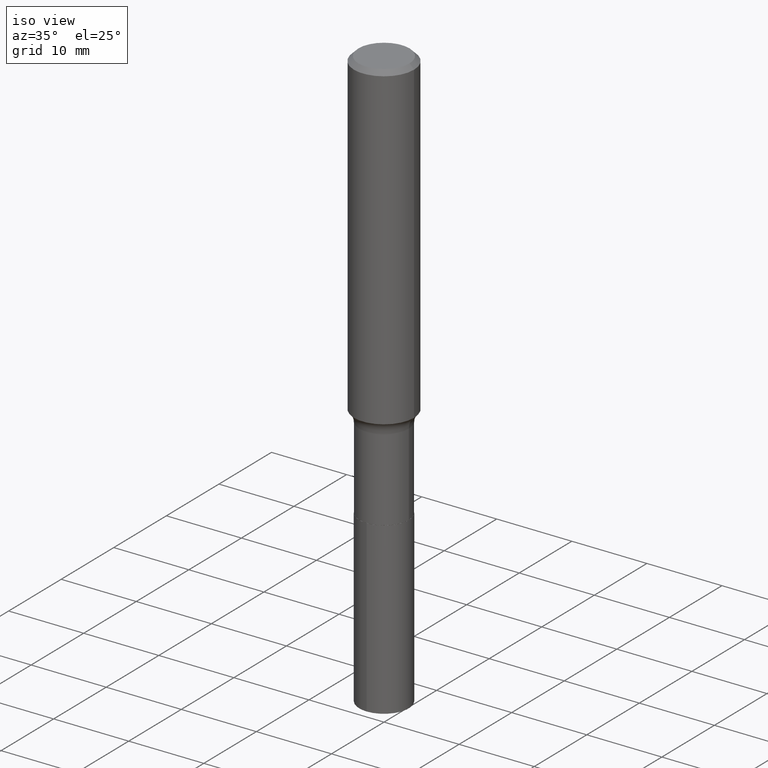
[diagram: clean part render]
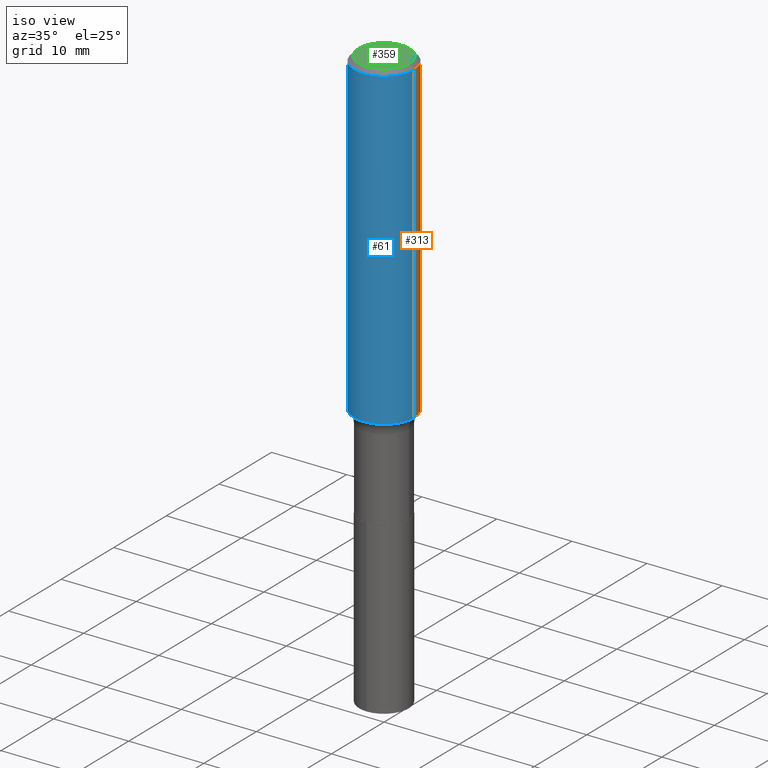
[diagram: same view with three faces highlighted in distinct colors, each labeled with its STEP entity id]
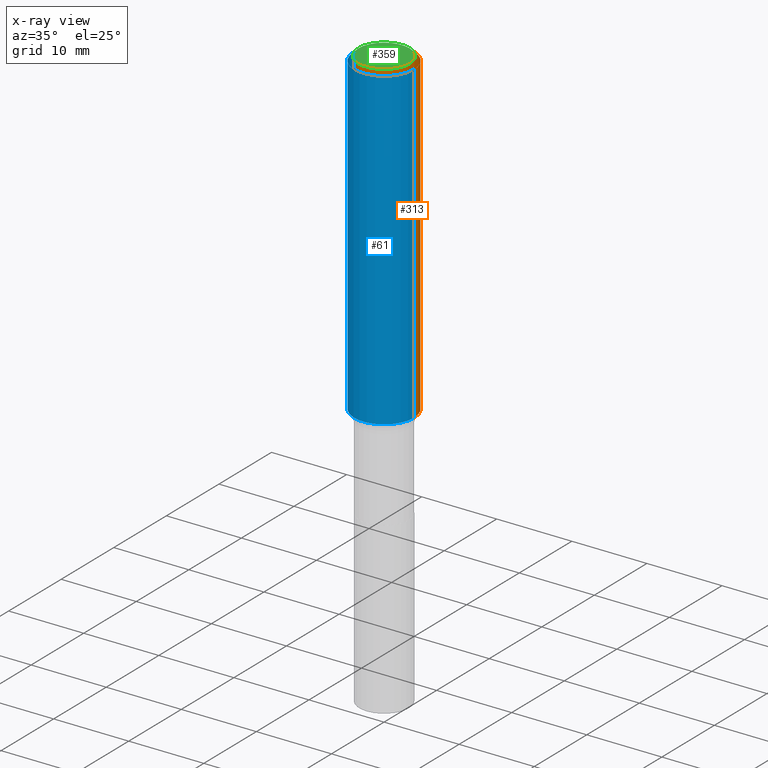
[diagram: x-ray of the same camera — body ghosted, the three highlighted faces saturated]
A machine part, iso view with three faces highlighted in distinct colors.
The next image is the same camera in x-ray (body ghosted, the three faces saturated) — at least one of them is partly hidden behind the body in this view.
Their STEP definitions:

[orange] entity #313 — the highlighted cylindrical surface (partial cylindrical patch) has radius 4.0005 mm, axis along (-0, 0, 1).
#3 = ORIENTED_EDGE ( 'NONE', *, *, #112, .F. ) ;
#10 = CARTESIAN_POINT ( 'NONE',  ( -0.1575000000000000011, -1.842884376224946844E-15, -0.02362500000000015282 ) ) ;
#45 = FACE_OUTER_BOUND ( 'NONE', #156, .T. ) ;
#52 = DIRECTION ( 'NONE',  ( 1.000000000000000000, -6.982962677686265922E-15, 0.000000000000000000 ) ) ;
#64 = VECTOR ( 'NONE', #164, 39.37007874015748143 ) ;
#77 = DIRECTION ( 'NONE',  ( -2.445468806185136597E-29, 3.491481338843145583E-15, 1.000000000000000000 ) ) ;
#112 = EDGE_CURVE ( 'NONE', #258, #377, #422, .T. ) ;
#118 = CYLINDRICAL_SURFACE ( 'NONE', #284, 0.1575000000000000844 ) ;
#129 = EDGE_CURVE ( 'NONE', #377, #302, #206, .T. ) ;
#131 = CIRCLE ( 'NONE', #492, 0.1575000000000001954 ) ;
#137 = ORIENTED_EDGE ( 'NONE', *, *, #281, .T. ) ;
#156 = EDGE_LOOP ( 'NONE', ( #137, #163, #293, #3 ) ) ;
#163 = ORIENTED_EDGE ( 'NONE', *, *, #332, .T. ) ;
#164 = DIRECTION ( 'NONE',  ( -2.445468806185136877E-29, 3.491481338843145188E-15, 1.000000000000000000 ) ) ;
#206 = CIRCLE ( 'NONE', #267, 0.1575000000000000011 ) ;
#214 = CARTESIAN_POINT ( 'NONE',  ( 0.1575000000000002232, -6.941308745199630134E-15, -1.673069839576900142 ) ) ;
#239 = DIRECTION ( 'NONE',  ( -2.445468806185136597E-29, 3.491481338843145583E-15, 1.000000000000000000 ) ) ;
#242 = CARTESIAN_POINT ( 'NONE',  ( 4.091440103254479694E-29, -5.841492123464042654E-15, -1.673069839576900142 ) ) ;
#258 = VERTEX_POINT ( 'NONE', #214 ) ;
#267 = AXIS2_PLACEMENT_3D ( 'NONE', #430, #77, #457 ) ;
#268 = DIRECTION ( 'NONE',  ( -2.445468806185136877E-29, 3.491481338843145188E-15, 1.000000000000000000 ) ) ;
#279 = CARTESIAN_POINT ( 'NONE',  ( 0.1575000000000000011, -1.182302868365756679E-15, -0.02362500000000015282 ) ) ;
#281 = EDGE_CURVE ( 'NONE', #258, #389, #131, .T. ) ;
#283 = CARTESIAN_POINT ( 'NONE',  ( 0.000000000000000000, 0.000000000000000000, 0.000000000000000000 ) ) ;
#284 = AXIS2_PLACEMENT_3D ( 'NONE', #283, #437, #315 ) ;
#289 = VECTOR ( 'NONE', #268, 39.37007874015748143 ) ;
#293 = ORIENTED_EDGE ( 'NONE', *, *, #129, .F. ) ;
#302 = VERTEX_POINT ( 'NONE', #10 ) ;
#313 = ADVANCED_FACE ( 'NONE', ( #45 ), #118, .T. ) ;
#315 = DIRECTION ( 'NONE',  ( 1.000000000000000000, -6.982962677686267499E-15, 4.876176775795936353E-29 ) ) ;
#332 = EDGE_CURVE ( 'NONE', #389, #302, #403, .T. ) ;
#377 = VERTEX_POINT ( 'NONE', #279 ) ;
#389 = VERTEX_POINT ( 'NONE', #410 ) ;
#403 = LINE ( 'NONE', #435, #64 ) ;
#410 = CARTESIAN_POINT ( 'NONE',  ( -0.1575000000000002232, -4.722387314641883473E-15, -1.673069839576900142 ) ) ;
#422 = LINE ( 'NONE', #425, #289 ) ;
#425 = CARTESIAN_POINT ( 'NONE',  ( 0.1575000000000000844, -1.099816621735587677E-15, 7.679978421878603638E-30 ) ) ;
#430 = CARTESIAN_POINT ( 'NONE',  ( 5.777420054612421980E-31, -8.248624663016985234E-17, -0.02362500000000015282 ) ) ;
#435 = CARTESIAN_POINT ( 'NONE',  ( -0.1575000000000000844, 1.119104808822158392E-15, -7.747322767151481189E-30 ) ) ;
#437 = DIRECTION ( 'NONE',  ( -2.445468806185136597E-29, 3.491481338843145583E-15, 1.000000000000000000 ) ) ;
#457 = DIRECTION ( 'NONE',  ( 1.000000000000000000, -6.982962677686265922E-15, 0.000000000000000000 ) ) ;
#492 = AXIS2_PLACEMENT_3D ( 'NONE', #242, #239, #52 ) ;

[blue] entity #61 — the highlighted cylindrical surface (partial cylindrical patch) has radius 4.0005 mm, axis along (-0, 0, 1).
#10 = CARTESIAN_POINT ( 'NONE',  ( -0.1575000000000000011, -1.842884376224946844E-15, -0.02362500000000015282 ) ) ;
#17 = CYLINDRICAL_SURFACE ( 'NONE', #366, 0.1575000000000000844 ) ;
#38 = CARTESIAN_POINT ( 'NONE',  ( 5.777420054612421980E-31, -8.248624663016985234E-17, -0.02362500000000015282 ) ) ;
#42 = CARTESIAN_POINT ( 'NONE',  ( 4.091440103254479694E-29, -5.841492123464042654E-15, -1.673069839576900142 ) ) ;
#48 = AXIS2_PLACEMENT_3D ( 'NONE', #42, #460, #463 ) ;
#61 = ADVANCED_FACE ( 'NONE', ( #215 ), #17, .T. ) ;
#64 = VECTOR ( 'NONE', #164, 39.37007874015748143 ) ;
#79 = DIRECTION ( 'NONE',  ( -2.445468806185136597E-29, 3.491481338843145583E-15, 1.000000000000000000 ) ) ;
#82 = EDGE_CURVE ( 'NONE', #389, #258, #223, .T. ) ;
#112 = EDGE_CURVE ( 'NONE', #258, #377, #422, .T. ) ;
#121 = AXIS2_PLACEMENT_3D ( 'NONE', #38, #79, #272 ) ;
#157 = DIRECTION ( 'NONE',  ( -2.445468806185136597E-29, 3.491481338843145583E-15, 1.000000000000000000 ) ) ;
#164 = DIRECTION ( 'NONE',  ( -2.445468806185136877E-29, 3.491481338843145188E-15, 1.000000000000000000 ) ) ;
#185 = ORIENTED_EDGE ( 'NONE', *, *, #112, .T. ) ;
#190 = EDGE_CURVE ( 'NONE', #302, #377, #240, .T. ) ;
#203 = CARTESIAN_POINT ( 'NONE',  ( 0.000000000000000000, 0.000000000000000000, 0.000000000000000000 ) ) ;
#214 = CARTESIAN_POINT ( 'NONE',  ( 0.1575000000000002232, -6.941308745199630134E-15, -1.673069839576900142 ) ) ;
#215 = FACE_OUTER_BOUND ( 'NONE', #415, .T. ) ;
#223 = CIRCLE ( 'NONE', #48, 0.1575000000000001954 ) ;
#240 = CIRCLE ( 'NONE', #121, 0.1575000000000000011 ) ;
#246 = DIRECTION ( 'NONE',  ( 1.000000000000000000, -6.982962677686267499E-15, 4.876176775795936353E-29 ) ) ;
#258 = VERTEX_POINT ( 'NONE', #214 ) ;
#268 = DIRECTION ( 'NONE',  ( -2.445468806185136877E-29, 3.491481338843145188E-15, 1.000000000000000000 ) ) ;
#272 = DIRECTION ( 'NONE',  ( 1.000000000000000000, -6.982962677686265922E-15, 0.000000000000000000 ) ) ;
#276 = ORIENTED_EDGE ( 'NONE', *, *, #190, .F. ) ;
#279 = CARTESIAN_POINT ( 'NONE',  ( 0.1575000000000000011, -1.182302868365756679E-15, -0.02362500000000015282 ) ) ;
#289 = VECTOR ( 'NONE', #268, 39.37007874015748143 ) ;
#302 = VERTEX_POINT ( 'NONE', #10 ) ;
#332 = EDGE_CURVE ( 'NONE', #389, #302, #403, .T. ) ;
#339 = ORIENTED_EDGE ( 'NONE', *, *, #332, .F. ) ;
#366 = AXIS2_PLACEMENT_3D ( 'NONE', #203, #157, #246 ) ;
#377 = VERTEX_POINT ( 'NONE', #279 ) ;
#389 = VERTEX_POINT ( 'NONE', #410 ) ;
#403 = LINE ( 'NONE', #435, #64 ) ;
#410 = CARTESIAN_POINT ( 'NONE',  ( -0.1575000000000002232, -4.722387314641883473E-15, -1.673069839576900142 ) ) ;
#415 = EDGE_LOOP ( 'NONE', ( #339, #451, #185, #276 ) ) ;
#422 = LINE ( 'NONE', #425, #289 ) ;
#425 = CARTESIAN_POINT ( 'NONE',  ( 0.1575000000000000844, -1.099816621735587677E-15, 7.679978421878603638E-30 ) ) ;
#435 = CARTESIAN_POINT ( 'NONE',  ( -0.1575000000000000844, 1.119104808822158392E-15, -7.747322767151481189E-30 ) ) ;
#451 = ORIENTED_EDGE ( 'NONE', *, *, #82, .T. ) ;
#460 = DIRECTION ( 'NONE',  ( -2.445468806185136597E-29, 3.491481338843145583E-15, 1.000000000000000000 ) ) ;
#463 = DIRECTION ( 'NONE',  ( 1.000000000000000000, -6.982962677686265922E-15, 0.000000000000000000 ) ) ;

[green] entity #359 — the highlighted planar face has unit normal (0, -0, -1).
#22 = DIRECTION ( 'NONE',  ( -2.445468806185136597E-29, 3.491481338843145583E-15, 1.000000000000000000 ) ) ;
#54 = FACE_OUTER_BOUND ( 'NONE', #89, .T. ) ;
#87 = AXIS2_PLACEMENT_3D ( 'NONE', #345, #143, #301 ) ;
#88 = CARTESIAN_POINT ( 'NONE',  ( -0.1338749999999999940, 9.760872517903331886E-16, 4.101342130337800673E-18 ) ) ;
#89 = EDGE_LOOP ( 'NONE', ( #136, #385 ) ) ;
#125 = DIRECTION ( 'NONE',  ( 1.000000000000000000, -6.982962677686266711E-15, 4.876170806578254279E-29 ) ) ;
#130 = CARTESIAN_POINT ( 'NONE',  ( 0.1338749999999999940, -1.040731925365424925E-15, 4.101342130351390035E-18 ) ) ;
#136 = ORIENTED_EDGE ( 'NONE', *, *, #296, .T. ) ;
#143 = DIRECTION ( 'NONE',  ( -2.445468806185136597E-29, 3.491481338843145583E-15, 1.000000000000000000 ) ) ;
#207 = AXIS2_PLACEMENT_3D ( 'NONE', #365, #249, #393 ) ;
#216 = EDGE_CURVE ( 'NONE', #434, #327, #252, .T. ) ;
#249 = DIRECTION ( 'NONE',  ( 2.438088387897960049E-29, -3.491481338843145188E-15, -1.000000000000000000 ) ) ;
#252 = CIRCLE ( 'NONE', #87, 0.1338749999999999940 ) ;
#296 = EDGE_CURVE ( 'NONE', #327, #434, #429, .T. ) ;
#301 = DIRECTION ( 'NONE',  ( 1.000000000000000000, -6.982962677686266711E-15, 4.876170806578254279E-29 ) ) ;
#327 = VERTEX_POINT ( 'NONE', #88 ) ;
#345 = CARTESIAN_POINT ( 'NONE',  ( -1.002970424325032604E-46, 1.431975951230895391E-32, 4.101342130344482109E-18 ) ) ;
#359 = ADVANCED_FACE ( 'NONE', ( #54 ), #474, .F. ) ;
#362 = CARTESIAN_POINT ( 'NONE',  ( -1.002970424325032604E-46, 1.431975951230895391E-32, 4.101342130344482109E-18 ) ) ;
#365 = CARTESIAN_POINT ( 'NONE',  ( -5.014852121625163022E-47, 7.159879756154476955E-33, 2.050671065172241055E-18 ) ) ;
#385 = ORIENTED_EDGE ( 'NONE', *, *, #216, .T. ) ;
#393 = DIRECTION ( 'NONE',  ( -1.000000000000000000, 6.982962677686265922E-15, -4.876176775795935793E-29 ) ) ;
#420 = AXIS2_PLACEMENT_3D ( 'NONE', #362, #22, #125 ) ;
#429 = CIRCLE ( 'NONE', #420, 0.1338749999999999940 ) ;
#434 = VERTEX_POINT ( 'NONE', #130 ) ;
#474 = PLANE ( 'NONE',  #207 ) ;